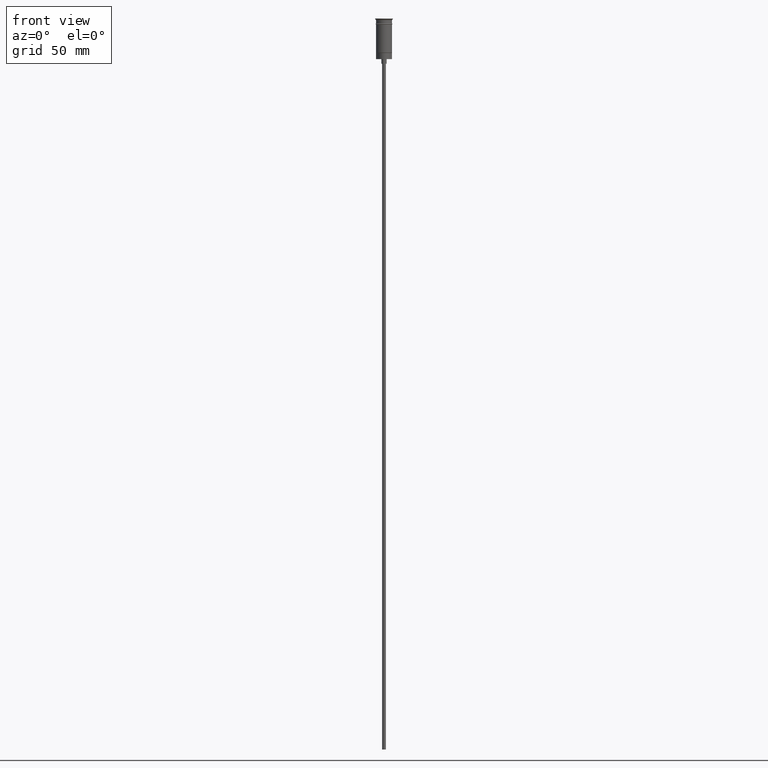
[diagram: clean part render]
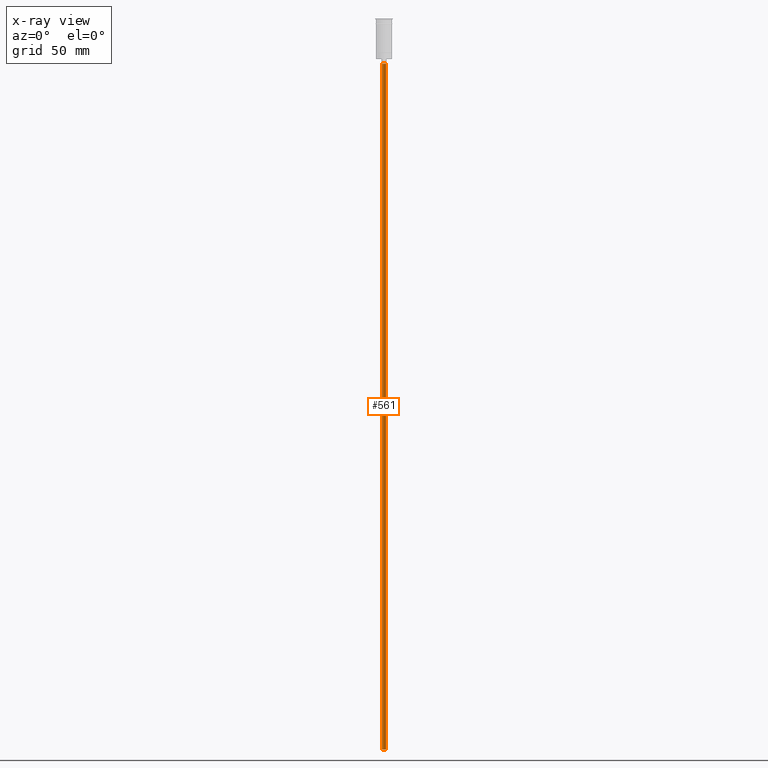
[diagram: x-ray — body ghosted, one internal face saturated and labeled with its STEP entity id]
A machine part, front view, then the same camera in x-ray: the body is ghosted and one INTERNAL B-rep face — a face not visible from any outside direction — is saturated and labeled: STEP entity #561.
In plain terms, the highlighted cylindrical surface (edge-blend (fillet) strip) has radius 1.25 mm, axis along (-0, -0, 1).
Its self-contained STEP definition (entity closure, byte-faithful):
#5 = VECTOR ( 'NONE', #481, 1000.000000000000000 ) ;
#13 = AXIS2_PLACEMENT_3D ( 'NONE', #1422, #813, #296 ) ;
#88 = VERTEX_POINT ( 'NONE', #1268 ) ;
#272 = DIRECTION ( 'NONE',  ( -1.000000000000000000, 0.000000000000000000, 0.000000000000000000 ) ) ;
#285 = AXIS2_PLACEMENT_3D ( 'NONE', #1583, #1507, #272 ) ;
#296 = DIRECTION ( 'NONE',  ( -1.000000000000000000, 0.000000000000000000, 0.000000000000000000 ) ) ;
#449 = LINE ( 'NONE', #1595, #5 ) ;
#455 = VECTOR ( 'NONE', #1056, 1000.000000000000000 ) ;
#459 = EDGE_CURVE ( 'NONE', #1490, #1101, #582, .T. ) ;
#477 = EDGE_CURVE ( 'NONE', #88, #631, #1322, .T. ) ;
#481 = DIRECTION ( 'NONE',  ( -0.000000000000000000, -0.000000000000000000, 1.000000000000000000 ) ) ;
#537 = CARTESIAN_POINT ( 'NONE',  ( -1.250000000000000000, 1.530808498934191571E-16, -476.5000000000000568 ) ) ;
#556 = AXIS2_PLACEMENT_3D ( 'NONE', #743, #1250, #1114 ) ;
#561 = ADVANCED_FACE ( 'NONE', ( #764 ), #722, .T. ) ;
#577 = EDGE_LOOP ( 'NONE', ( #756, #718, #1163, #656 ) ) ;
#582 = CIRCLE ( 'NONE', #13, 1.250000000000000000 ) ;
#631 = VERTEX_POINT ( 'NONE', #663 ) ;
#656 = ORIENTED_EDGE ( 'NONE', *, *, #1379, .F. ) ;
#663 = CARTESIAN_POINT ( 'NONE',  ( 1.250000000000000000, 0.000000000000000000, -29.50000000000000000 ) ) ;
#718 = ORIENTED_EDGE ( 'NONE', *, *, #1234, .T. ) ;
#722 = CYLINDRICAL_SURFACE ( 'NONE', #556, 1.250000000000000000 ) ;
#743 = CARTESIAN_POINT ( 'NONE',  ( 0.000000000000000000, 0.000000000000000000, -476.5000000000000568 ) ) ;
#756 = ORIENTED_EDGE ( 'NONE', *, *, #459, .F. ) ;
#764 = FACE_OUTER_BOUND ( 'NONE', #577, .T. ) ;
#813 = DIRECTION ( 'NONE',  ( 0.000000000000000000, 0.000000000000000000, -1.000000000000000000 ) ) ;
#907 = CARTESIAN_POINT ( 'NONE',  ( 1.250000000000000000, 0.000000000000000000, -476.5000000000000568 ) ) ;
#1056 = DIRECTION ( 'NONE',  ( -0.000000000000000000, -0.000000000000000000, 1.000000000000000000 ) ) ;
#1101 = VERTEX_POINT ( 'NONE', #907 ) ;
#1114 = DIRECTION ( 'NONE',  ( 1.000000000000000000, 0.000000000000000000, 0.000000000000000000 ) ) ;
#1163 = ORIENTED_EDGE ( 'NONE', *, *, #477, .T. ) ;
#1164 = CARTESIAN_POINT ( 'NONE',  ( -1.250000000000000000, 1.530808498934191571E-16, -476.5000000000000568 ) ) ;
#1205 = LINE ( 'NONE', #537, #455 ) ;
#1234 = EDGE_CURVE ( 'NONE', #1490, #88, #1205, .T. ) ;
#1250 = DIRECTION ( 'NONE',  ( -0.000000000000000000, -0.000000000000000000, 1.000000000000000000 ) ) ;
#1268 = CARTESIAN_POINT ( 'NONE',  ( -1.250000000000000000, 1.530808498934191571E-16, -29.50000000000000000 ) ) ;
#1322 = CIRCLE ( 'NONE', #285, 1.250000000000000000 ) ;
#1379 = EDGE_CURVE ( 'NONE', #1101, #631, #449, .T. ) ;
#1422 = CARTESIAN_POINT ( 'NONE',  ( 0.000000000000000000, 0.000000000000000000, -476.5000000000000568 ) ) ;
#1490 = VERTEX_POINT ( 'NONE', #1164 ) ;
#1507 = DIRECTION ( 'NONE',  ( 0.000000000000000000, 0.000000000000000000, -1.000000000000000000 ) ) ;
#1583 = CARTESIAN_POINT ( 'NONE',  ( 0.000000000000000000, 0.000000000000000000, -29.50000000000000000 ) ) ;
#1595 = CARTESIAN_POINT ( 'NONE',  ( 1.250000000000000000, 0.000000000000000000, -476.5000000000000568 ) ) ;